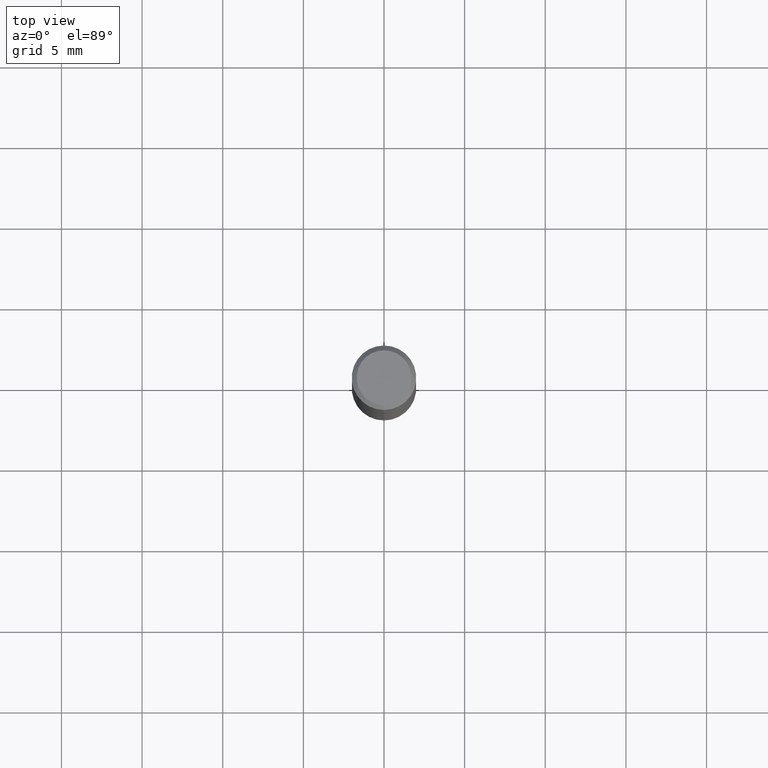
[diagram: clean part render]
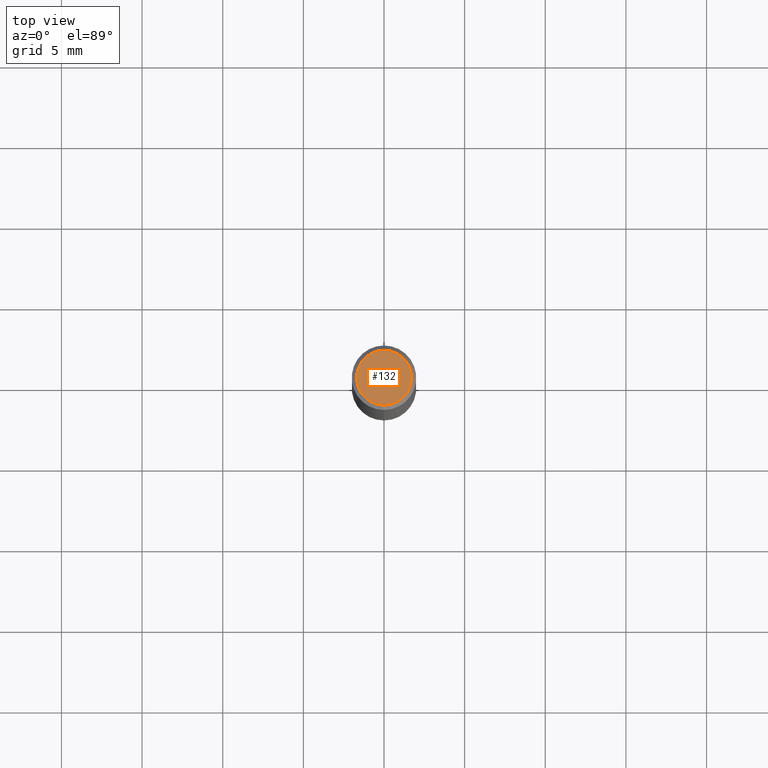
[diagram: same view with one face highlighted and labeled with its STEP entity id]
A machine part, top view. The second image highlights one B-rep face of the part: STEP entity #132.
In plain terms, the highlighted planar face has unit normal (-0, 0, 1).
Its self-contained STEP definition (entity closure, byte-faithful):
#102=VERTEX_POINT('',#243);
#106=EDGE_CURVE('',#152,#102,#247,.T.);
#132=ADVANCED_FACE('',(#279),#280,.T.);
#152=VERTEX_POINT('',#301);
#200=EDGE_CURVE('',#102,#152,#353,.T.);
#243=CARTESIAN_POINT('',(2.08183080149804E-016,-1.7,0.0));
#247=CIRCLE('',#403,1.7);
#279=FACE_OUTER_BOUND('',#438,.T.);
#280=PLANE('',#439);
#301=CARTESIAN_POINT('',(0.0,1.7,0.0));
#353=CIRCLE('',#536,1.7);
#403=AXIS2_PLACEMENT_3D('',#564,#565,#566);
#438=EDGE_LOOP('',(#619,#620));
#439=AXIS2_PLACEMENT_3D('',#621,#622,#623);
#536=AXIS2_PLACEMENT_3D('',#699,#700,#701);
#564=CARTESIAN_POINT('',(0.0,0.0,0.0));
#565=DIRECTION('',(0.0,0.0,-1.0));
#566=DIRECTION('',(0.0,1.0,0.0));
#619=ORIENTED_EDGE('',*,*,#106,.F.);
#620=ORIENTED_EDGE('',*,*,#200,.F.);
#621=CARTESIAN_POINT('',(0.0,0.85,0.0));
#622=DIRECTION('',(-0.0,0.0,1.0));
#623=DIRECTION('',(0.0,-1.0,0.0));
#699=CARTESIAN_POINT('',(0.0,0.0,0.0));
#700=DIRECTION('',(0.0,0.0,-1.0));
#701=DIRECTION('',(0.0,1.0,0.0));